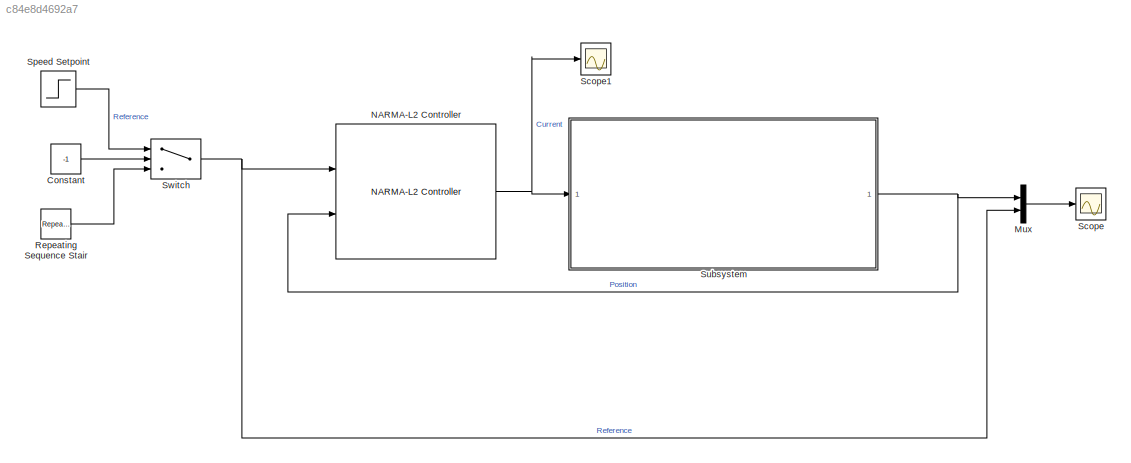
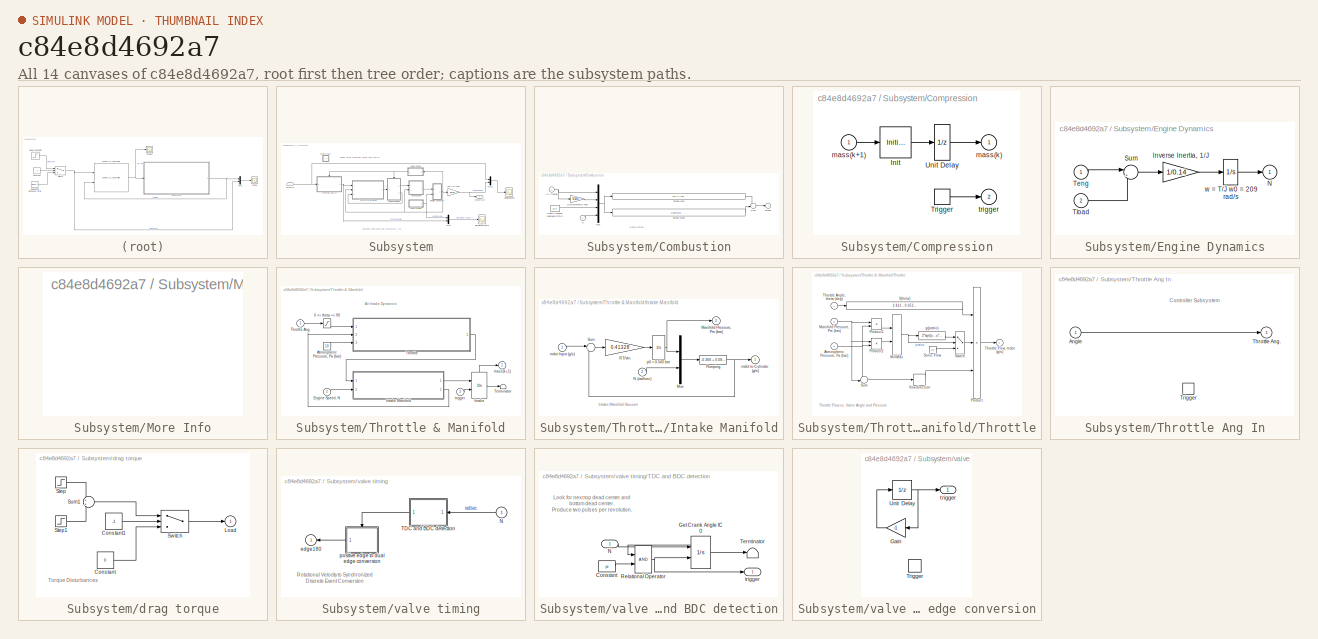
[diagram: thumbnail index - all 14 canvases of the model, root first then tree order]
MODEL slx_c84e8d4692a7
KIND model
CONFIG AbsTol = auto
CONFIG EnableMultiTasking = off
CONFIG FixedStep = 0.001
CONFIG MaxStep = auto
CONFIG MinStep = auto
CONFIG RelTol = 1e-3
CONFIG SampleTimeConstraint = Unconstrained
CONFIG Solver = FixedStepAuto
CONFIG SolverName = FixedStepAuto
CONFIG StartTime = 0.0
CONFIG StopTime = 30
BLOCK [Constant] Constant
  Value = -1
BLOCK [Mux] Mux
  DisplayOption = bar
  Inputs = 2
  Ports = [2, 1]
BLOCK [Reference] NARMA-L2 Controller  REF=neural/Control Systems/NARMA-L2 Controller
  Ports = [2, 1]
  SourceBlock = neural/Control Systems/NARMA-L2 Controller
  SourceProductBaseCode = NN
  SourceProductName = Deep Learning Toolbox
  SourceType = NARMA-L2 Controller
BLOCK [Reference] Repeating Sequence Stair  REF=simulink/Sources/Repeating
Sequence
Stair
  Ports = [0, 1]
  SourceBlock = simulink/Sources/Repeating\nSequence\nStair
  SourceProductBaseCode = SL
  SourceProductName = Simulink
  SourceType = Repeating Sequence Stair
BLOCK [Scope] Scope
  Floating = off
  NumInputPorts = 1
  Ports = [1]
  ScopeSpecificationString = Simulink.scopes.TimeScopeBlockCfg('CurrentConfiguration', extmgr.ConfigurationSet(extmgr.Configuration('Core','General UI',true),extmgr.Configuration('Core','Source UI',true),extmgr.Configuration('Sources','WiredSimulink',true),extmgr.Configuration('Visuals','Time Domain',true,'SerializedDisplays',{struct('MinYLimReal','283.59903','MaxYLimReal','5842.31636','YLabelReal','','MinYLimMag','283.59903'...<+1412ch>
BLOCK [Scope] Scope1
  Floating = off
  NumInputPorts = 1
  Ports = [1]
  ScopeSpecificationString = Simulink.scopes.TimeScopeBlockCfg('CurrentConfiguration', extmgr.ConfigurationSet(extmgr.Configuration('Core','General UI',true),extmgr.Configuration('Core','Source UI',true),extmgr.Configuration('Sources','WiredSimulink',true,'DataLoggingVariableName','ScopeData1'),extmgr.Configuration('Visuals','Time Domain',true,'SerializedDisplays',{struct('MinYLimReal','-3.875','MaxYLimReal','44.875','YLabelR...<+1429ch>
BLOCK [Step] Speed Setpoint
  After = 3000
  Before = 2000
  SampleTime = 0
  Time = 5
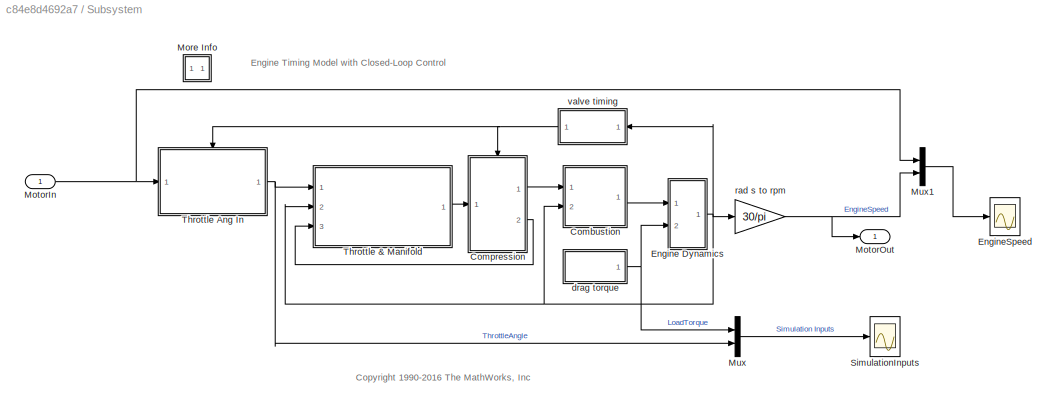
BLOCK [SubSystem] Subsystem
  Ports = [1, 1]
  RequestExecContextInheritance = off
BLOCK [SubSystem] Subsystem/Combustion
  Ports = [2, 1]
  RequestExecContextInheritance = off
BLOCK [Inport] Subsystem/Combustion/Air Charge
  IconDisplay = Port number
BLOCK [Mux] Subsystem/Combustion/Mux
  DisplayOption = bar
  Ports = [4, 1]
BLOCK [Inport] Subsystem/Combustion/N
  IconDisplay = Port number
  Port = 2
BLOCK [Constant] Subsystem/Combustion/Spark Advance (degrees BTDC)
  Value = 15.0
BLOCK [Gain] Subsystem/Combustion/Stoichiometric Fuel
  Gain = 1/14.6
BLOCK [Sum] Subsystem/Combustion/Sum
  IconShape = round
  Ports = [2, 1]
BLOCK [Outport] Subsystem/Combustion/Torque
  IconDisplay = Port number
  InitialOutput = 0
BLOCK [Fcn] Subsystem/Combustion/Torque Gen
  Expr = -181.3 + 379.36*u[1] + 21.91*u[1]/u[2] - (0.85*u[1]*u[1])/(u[2]*u[2]) + 0.26*u[3] - 0.0028*u[3]*u[3]
BLOCK [Fcn] Subsystem/Combustion/Torque Gen2
  Expr = 0.027*u[4] - 0.000107*u[4]*u[4] + 0.00048*u[4]*u[3] + 2.55*u[3]*u[1] - 0.05*u[3]*u[3]*u[1]
BLOCK [SubSystem] Subsystem/Compression
  Ports = [1, 2, 0, 1]
  RequestExecContextInheritance = off
  TreatAsAtomicUnit = on
BLOCK [InitialCondition] Subsystem/Compression/Init
  Value = 0.152
BLOCK [TriggerPort] Subsystem/Compression/Trigger
  Ports = [0, 1]
  ShowOutputPort = on
  TriggerType = either
  VariantControl = Variant
BLOCK [UnitDelay] Subsystem/Compression/Unit Delay
  HasFrameUpgradeWarning = on
  InitialCondition = 0.152
  SampleTime = -1
BLOCK [Outport] Subsystem/Compression/mass(k)
  IconDisplay = Port number
  InitialOutput = 0.152
BLOCK [Inport] Subsystem/Compression/mass(k+1)
  IconDisplay = Port number
BLOCK [Outport] Subsystem/Compression/trigger
  IconDisplay = Port number
  InitialOutput = -1
  Port = 2
BLOCK [SubSystem] Subsystem/Engine Dynamics
  Ports = [2, 1]
  RequestExecContextInheritance = off
BLOCK [Gain] Subsystem/Engine Dynamics/Inverse Inertia, 1//J
  Gain = 1/0.14
BLOCK [Outport] Subsystem/Engine Dynamics/N
  IconDisplay = Port number
  InitialOutput = 0
BLOCK [Sum] Subsystem/Engine Dynamics/Sum
  IconShape = round
  Inputs = |+-
  Ports = [2, 1]
BLOCK [Inport] Subsystem/Engine Dynamics/Teng
  IconDisplay = Port number
BLOCK [Inport] Subsystem/Engine Dynamics/Tload
  IconDisplay = Port number
  Port = 2
BLOCK [Integrator] Subsystem/Engine Dynamics/w = T//J w0 = 209 rad//s
  InitialCondition = 209.48
  Ports = [1, 1]
BLOCK [Scope] Subsystem/EngineSpeed
  Floating = off
  NumInputPorts = 1
  Ports = [1]
  ScopeSpecificationString = Simulink.scopes.TimeScopeBlockCfg('CurrentConfiguration', extmgr.ConfigurationSet(extmgr.Configuration('Core','General UI',true),extmgr.Configuration('Core','Source UI',true),extmgr.Configuration('Sources','WiredSimulink',true,'DataLoggingVariableName','ScopeData1','DataLoggingSaveFormat','Structure','DataLoggingDecimation','1'),extmgr.Configuration('Visuals','Time Domain',true,'TimeAxisLabels','A...<+1709ch>
BLOCK [SubSystem] Subsystem/More Info
  OpenFcn = showdemo(bdroot(gcb))
  Ports = []
  RequestExecContextInheritance = off
BLOCK [Inport] Subsystem/MotorIn
  IconDisplay = Port number
BLOCK [Outport] Subsystem/MotorOut 
  IconDisplay = Port number
BLOCK [Mux] Subsystem/Mux
  DisplayOption = bar
  Inputs = 2
  Ports = [2, 1]
BLOCK [Mux] Subsystem/Mux1
  DisplayOption = bar
  Inputs = 2
  Ports = [2, 1]
BLOCK [Scope] Subsystem/SimulationInputs
  Floating = off
  NumInputPorts = 1
  Ports = [1]
  ScopeSpecificationString = Simulink.scopes.TimeScopeBlockCfg('CurrentConfiguration', extmgr.ConfigurationSet(extmgr.Configuration('Core','General UI',true),extmgr.Configuration('Core','Source UI',true),extmgr.Configuration('Sources','WiredSimulink',true,'DataLoggingVariableName','ScopeData2','DataLoggingSaveFormat','Structure','DataLoggingDecimation','1'),extmgr.Configuration('Visuals','Time Domain',true,'TimeAxisLabels','A...<+1732ch>
BLOCK [SubSystem] Subsystem/Throttle & Manifold
  Ports = [3, 1]
  RequestExecContextInheritance = off
BLOCK [Saturate] Subsystem/Throttle & Manifold/0 <= theta <= 90
  InputPortMap = u0
  LowerLimit = 0
  Ports = [1, 1]
  UpperLimit = 90
BLOCK [Constant] Subsystem/Throttle & Manifold/Atmospheric Pressure, Pa (bar)
  Value = 1.0
BLOCK [Inport] Subsystem/Throttle & Manifold/Engine Speed, N
  IconDisplay = Port number
  Port = 2
BLOCK [Integrator] Subsystem/Throttle & Manifold/Intake
  ExternalReset = either
  Ports = [2, 1, 0, 0, 1]
  ShowStatePort = on
BLOCK [SubSystem] Subsystem/Throttle & Manifold/Intake Manifold
  Ports = [2, 2]
  RequestExecContextInheritance = off
BLOCK [Outport] Subsystem/Throttle & Manifold/Intake Manifold/Manifold Pressure, Pm (bar)
  IconDisplay = Port number
  InitialOutput = 0
  Port = 2
BLOCK [Mux] Subsystem/Throttle & Manifold/Intake Manifold/Mux
  DisplayOption = bar
  Inputs = 2
  Ports = [2, 1]
BLOCK [Inport] Subsystem/Throttle & Manifold/Intake Manifold/N (rad//sec)
  IconDisplay = Port number
  Port = 2
BLOCK [Fcn] Subsystem/Throttle & Manifold/Intake Manifold/Pumping
  Expr = -0.366 + 0.08979*u[1]*u[2] - 0.0337*u[2]*u[1]*u[1] + 0.0001*u[1]*u[2]*u[2]
BLOCK [Gain] Subsystem/Throttle & Manifold/Intake Manifold/RT//Vm
  Gain = 0.41328
BLOCK [Sum] Subsystem/Throttle & Manifold/Intake Manifold/Sum
  IconShape = round
  Inputs = |+-
  Ports = [2, 1]
BLOCK [Inport] Subsystem/Throttle & Manifold/Intake Manifold/mdot Input (g//s)
  IconDisplay = Port number
BLOCK [Outport] Subsystem/Throttle & Manifold/Intake Manifold/mdot to Cylinder (g//s)
  IconDisplay = Port number
  InitialOutput = 0
BLOCK [Integrator] Subsystem/Throttle & Manifold/Intake Manifold/p0 = 0.543 bar
  InitialCondition = .543
  Ports = [1, 1]
BLOCK [Terminator] Subsystem/Throttle & Manifold/Terminator
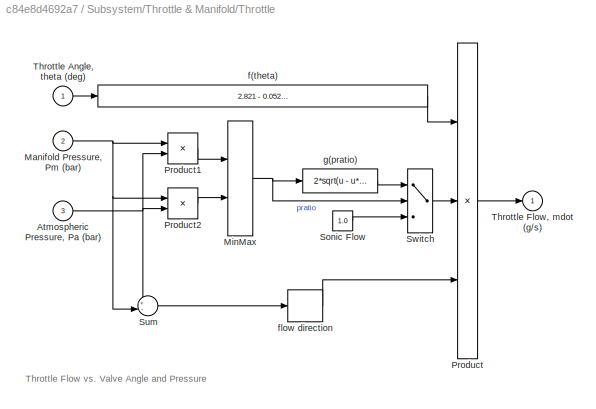
BLOCK [SubSystem] Subsystem/Throttle & Manifold/Throttle
  Ports = [3, 1]
  RequestExecContextInheritance = off
BLOCK [Inport] Subsystem/Throttle & Manifold/Throttle Ang.
  IconDisplay = Port number
BLOCK [Inport] Subsystem/Throttle & Manifold/Throttle/Atmospheric Pressure, Pa (bar) 
  IconDisplay = Port number
  Port = 3
BLOCK [Inport] Subsystem/Throttle & Manifold/Throttle/Manifold Pressure, Pm (bar)
  IconDisplay = Port number
  Port = 2
BLOCK [MinMax] Subsystem/Throttle & Manifold/Throttle/MinMax
  Inputs = 2
  Ports = [2, 1]
BLOCK [Product] Subsystem/Throttle & Manifold/Throttle/Product
  Inputs = 3
  Ports = [3, 1]
BLOCK [Product] Subsystem/Throttle & Manifold/Throttle/Product1
  Inputs = */
  Ports = [2, 1]
BLOCK [Product] Subsystem/Throttle & Manifold/Throttle/Product2
  Inputs = /*
  Ports = [2, 1]
BLOCK [Constant] Subsystem/Throttle & Manifold/Throttle/Sonic Flow 
  Value = 1.0
BLOCK [Sum] Subsystem/Throttle & Manifold/Throttle/Sum
  IconShape = round
  Inputs = +-|
  Ports = [2, 1]
BLOCK [Switch] Subsystem/Throttle & Manifold/Throttle/Switch
  Threshold = 0.5
BLOCK [Inport] Subsystem/Throttle & Manifold/Throttle/Throttle Angle, theta (deg)
  IconDisplay = Port number
BLOCK [Outport] Subsystem/Throttle & Manifold/Throttle/Throttle Flow, mdot (g//s)
  IconDisplay = Port number
  InitialOutput = 0
BLOCK [Fcn] Subsystem/Throttle & Manifold/Throttle/f(theta)
  Expr = 2.821 - 0.05231*u + 0.10299*u*u - 0.00063*u*u*u
BLOCK [Signum] Subsystem/Throttle & Manifold/Throttle/flow direction
BLOCK [Fcn] Subsystem/Throttle & Manifold/Throttle/g(pratio)
  Expr = 2*sqrt(u - u*u)
BLOCK [Outport] Subsystem/Throttle & Manifold/mass(k+1)
  IconDisplay = Port number
  InitialOutput = 0
BLOCK [Inport] Subsystem/Throttle & Manifold/trigger
  IconDisplay = Port number
  Port = 3
BLOCK [SubSystem] Subsystem/Throttle Ang In
  Ports = [1, 1, 0, 1]
  RequestExecContextInheritance = off
  TreatAsAtomicUnit = on
BLOCK [Inport] Subsystem/Throttle Ang In/Angle
  IconDisplay = Port number
BLOCK [Outport] Subsystem/Throttle Ang In/Throttle Ang.
  IconDisplay = Port number
  InitialOutput = 8.973
BLOCK [TriggerPort] Subsystem/Throttle Ang In/Trigger
  Ports = []
  TriggerType = either
  VariantControl = Variant
BLOCK [SubSystem] Subsystem/drag torque
  Ports = [0, 1]
  RequestExecContextInheritance = off
BLOCK [Constant] Subsystem/drag torque/Constant
  Value = 0
BLOCK [Constant] Subsystem/drag torque/Constant1
  Value = -1
BLOCK [Outport] Subsystem/drag torque/Load
  IconDisplay = Port number
  InitialOutput = 0
BLOCK [Step] Subsystem/drag torque/Step
  After = 20
  Before = 25
  SampleTime = 0
  Time = 2
BLOCK [Step] Subsystem/drag torque/Step1
  After = 5
  SampleTime = 0
  Time = 8
BLOCK [Sum] Subsystem/drag torque/Sum1
  IconShape = round
  Ports = [2, 1]
BLOCK [Switch] Subsystem/drag torque/Switch
  Criteria = u2 > Threshold
  InputSameDT = off
  SaturateOnIntegerOverflow = off
BLOCK [Gain] Subsystem/rad s to rpm
  Gain = 30/pi
BLOCK [SubSystem] Subsystem/valve timing
  Ports = [1, 1]
  RequestExecContextInheritance = off
BLOCK [Inport] Subsystem/valve timing/N
  IconDisplay = Port number
BLOCK [SubSystem] Subsystem/valve timing/TDC and BDC detection
  Ports = [1, 1]
  RequestExecContextInheritance = off
BLOCK [Constant] Subsystem/valve timing/TDC and BDC detection/Constant
  Value = pi
BLOCK [Integrator] Subsystem/valve timing/TDC and BDC detection/Get Crank Angle IC 0
  ExternalReset = rising
  Ports = [2, 1, 0, 0, 1]
  ShowStatePort = on
BLOCK [Inport] Subsystem/valve timing/TDC and BDC detection/N
  IconDisplay = Port number
BLOCK [RelationalOperator] Subsystem/valve timing/TDC and BDC detection/Relational Operator
  OutDataTypeStr = boolean
  Ports = [2, 1]
BLOCK [Terminator] Subsystem/valve timing/TDC and BDC detection/Terminator
BLOCK [Outport] Subsystem/valve timing/TDC and BDC detection/trigger
  IconDisplay = Port number
  InitialOutput = 0
BLOCK [Outport] Subsystem/valve timing/edge180
  IconDisplay = Port number
  InitialOutput = -1
BLOCK [SubSystem] Subsystem/valve timing/positive edge to dual edge conversion
  Ports = [0, 1, 0, 1]
  RequestExecContextInheritance = off
  TreatAsAtomicUnit = on
BLOCK [Gain] Subsystem/valve timing/positive edge to dual edge conversion/Gain
  Gain = -1
BLOCK [TriggerPort] Subsystem/valve timing/positive edge to dual edge conversion/Trigger
  Ports = []
  VariantControl = Variant
BLOCK [UnitDelay] Subsystem/valve timing/positive edge to dual edge conversion/Unit Delay
  HasFrameUpgradeWarning = on
  InitialCondition = 1
  SampleTime = -1
BLOCK [Outport] Subsystem/valve timing/positive edge to dual edge conversion/trigger
  IconDisplay = Port number
  InitialOutput = -1
BLOCK [Switch] Switch
  Criteria = u2 > Threshold
  InputSameDT = off
  SaturateOnIntegerOverflow = off
ANNOTATION Subsystem: <copyright redacted>
ANNOTATION Subsystem: Engine Timing Model with Closed-Loop Control
ANNOTATION Subsystem/Combustion: Engine Torque
ANNOTATION Subsystem/Throttle & Manifold: Air Intake Dynamics
ANNOTATION Subsystem/Throttle & Manifold/Intake Manifold: Intake Manifold Vacuum
ANNOTATION Subsystem/Throttle & Manifold/Throttle: Throttle Flow vs. Valve Angle and Pressure
ANNOTATION Subsystem/Throttle Ang In: Controller Subsystem
ANNOTATION Subsystem/drag torque: Torque Disturbances
ANNOTATION Subsystem/valve timing: Rotational Velocity to Synchronized Discrete Event Conversion
ANNOTATION Subsystem/valve timing/TDC and BDC detection: Look for next top dead center.and bottom dead center. Produce two pulses per revolution.
LINE Constant:1 -> Switch:2
LINE Mux:1 -> Scope:1
NET NARMA-L2 Controller:1 -> Scope1:1, Subsystem:1
LINE Repeating Sequence Stair:1 -> Switch:3
LINE Speed Setpoint:1 -> Switch:1
NET Subsystem/Combustion/Air Charge:1 -> Subsystem/Combustion/Mux:1, Subsystem/Combustion/Stoichiometric Fuel:1
NET Subsystem/Combustion/Mux:1 -> Subsystem/Combustion/Torque Gen2:1, Subsystem/Combustion/Torque Gen:1
LINE Subsystem/Combustion/N:1 -> Subsystem/Combustion/Mux:4
LINE Subsystem/Combustion/Spark Advance (degrees BTDC):1 -> Subsystem/Combustion/Mux:3
LINE Subsystem/Combustion/Stoichiometric Fuel:1 -> Subsystem/Combustion/Mux:2
LINE Subsystem/Combustion/Sum:1 -> Subsystem/Combustion/Torque:1
LINE Subsystem/Combustion/Torque Gen2:1 -> Subsystem/Combustion/Sum:2
LINE Subsystem/Combustion/Torque Gen:1 -> Subsystem/Combustion/Sum:1
LINE Subsystem/Combustion:1 -> Subsystem/Engine Dynamics:1
LINE Subsystem/Compression/Init:1 -> Subsystem/Compression/Unit Delay:1
LINE Subsystem/Compression/Trigger:1 -> Subsystem/Compression/trigger:1
LINE Subsystem/Compression/Unit Delay:1 -> Subsystem/Compression/mass(k):1
LINE Subsystem/Compression/mass(k+1):1 -> Subsystem/Compression/Init:1
LINE Subsystem/Compression:1 -> Subsystem/Combustion:1
LINE Subsystem/Compression:2 -> Subsystem/Throttle & Manifold:3
LINE Subsystem/Engine Dynamics/Inverse Inertia, 1//J:1 -> Subsystem/Engine Dynamics/w = T//J w0 = 209 rad//s:1
LINE Subsystem/Engine Dynamics/Sum:1 -> Subsystem/Engine Dynamics/Inverse Inertia, 1//J:1
LINE Subsystem/Engine Dynamics/Teng:1 -> Subsystem/Engine Dynamics/Sum:1
LINE Subsystem/Engine Dynamics/Tload:1 -> Subsystem/Engine Dynamics/Sum:2
LINE Subsystem/Engine Dynamics/w = T//J w0 = 209 rad//s:1 -> Subsystem/Engine Dynamics/N:1
NET Subsystem/Engine Dynamics:1 -> Subsystem/Combustion:2, Subsystem/Throttle & Manifold:2, Subsystem/rad s to rpm:1, Subsystem/valve timing:1
NET Subsystem/MotorIn:1 -> Subsystem/Mux1:1, Subsystem/Throttle Ang In:1
LINE Subsystem/Mux1:1 -> Subsystem/EngineSpeed:1
LINE Subsystem/Mux:1 -> Subsystem/SimulationInputs:1
LINE Subsystem/Throttle & Manifold/0 <= theta <= 90:1 -> Subsystem/Throttle & Manifold/Throttle:1
LINE Subsystem/Throttle & Manifold/Atmospheric Pressure, Pa (bar):1 -> Subsystem/Throttle & Manifold/Throttle:3
LINE Subsystem/Throttle & Manifold/Engine Speed, N:1 -> Subsystem/Throttle & Manifold/Intake Manifold:2
LINE Subsystem/Throttle & Manifold/Intake Manifold/Mux:1 -> Subsystem/Throttle & Manifold/Intake Manifold/Pumping:1
LINE Subsystem/Throttle & Manifold/Intake Manifold/N (rad//sec):1 -> Subsystem/Throttle & Manifold/Intake Manifold/Mux:2
NET Subsystem/Throttle & Manifold/Intake Manifold/Pumping:1 -> Subsystem/Throttle & Manifold/Intake Manifold/Sum:2, Subsystem/Throttle & Manifold/Intake Manifold/mdot to Cylinder (g//s):1
LINE Subsystem/Throttle & Manifold/Intake Manifold/RT//Vm:1 -> Subsystem/Throttle & Manifold/Intake Manifold/p0 = 0.543 bar:1
LINE Subsystem/Throttle & Manifold/Intake Manifold/Sum:1 -> Subsystem/Throttle & Manifold/Intake Manifold/RT//Vm:1
LINE Subsystem/Throttle & Manifold/Intake Manifold/mdot Input (g//s):1 -> Subsystem/Throttle & Manifold/Intake Manifold/Sum:1
NET Subsystem/Throttle & Manifold/Intake Manifold/p0 = 0.543 bar:1 -> Subsystem/Throttle & Manifold/Intake Manifold/Manifold Pressure, Pm (bar):1, Subsystem/Throttle & Manifold/Intake Manifold/Mux:1
LINE Subsystem/Throttle & Manifold/Intake Manifold:1 -> Subsystem/Throttle & Manifold/Intake:1
LINE Subsystem/Throttle & Manifold/Intake Manifold:2 -> Subsystem/Throttle & Manifold/Throttle:2
LINE Subsystem/Throttle & Manifold/Intake:1 -> Subsystem/Throttle & Manifold/Terminator:1
LINE Subsystem/Throttle & Manifold/Intake:state -> Subsystem/Throttle & Manifold/mass(k+1):1
LINE Subsystem/Throttle & Manifold/Throttle Ang.:1 -> Subsystem/Throttle & Manifold/0 <= theta <= 90:1
NET Subsystem/Throttle & Manifold/Throttle/Atmospheric Pressure, Pa (bar) :1 -> Subsystem/Throttle & Manifold/Throttle/Product1:2, Subsystem/Throttle & Manifold/Throttle/Product2:2, Subsystem/Throttle & Manifold/Throttle/Sum:1
NET Subsystem/Throttle & Manifold/Throttle/Manifold Pressure, Pm (bar):1 -> Subsystem/Throttle & Manifold/Throttle/Product1:1, Subsystem/Throttle & Manifold/Throttle/Product2:1, Subsystem/Throttle & Manifold/Throttle/Sum:2
NET Subsystem/Throttle & Manifold/Throttle/MinMax:1 -> Subsystem/Throttle & Manifold/Throttle/Switch:2, Subsystem/Throttle & Manifold/Throttle/g(pratio):1
LINE Subsystem/Throttle & Manifold/Throttle/Product1:1 -> Subsystem/Throttle & Manifold/Throttle/MinMax:1
LINE Subsystem/Throttle & Manifold/Throttle/Product2:1 -> Subsystem/Throttle & Manifold/Throttle/MinMax:2
LINE Subsystem/Throttle & Manifold/Throttle/Product:1 -> Subsystem/Throttle & Manifold/Throttle/Throttle Flow, mdot (g//s):1
LINE Subsystem/Throttle & Manifold/Throttle/Sonic Flow :1 -> Subsystem/Throttle & Manifold/Throttle/Switch:3
LINE Subsystem/Throttle & Manifold/Throttle/Sum:1 -> Subsystem/Throttle & Manifold/Throttle/flow direction:1
LINE Subsystem/Throttle & Manifold/Throttle/Switch:1 -> Subsystem/Throttle & Manifold/Throttle/Product:2
LINE Subsystem/Throttle & Manifold/Throttle/Throttle Angle, theta (deg):1 -> Subsystem/Throttle & Manifold/Throttle/f(theta):1
LINE Subsystem/Throttle & Manifold/Throttle/f(theta):1 -> Subsystem/Throttle & Manifold/Throttle/Product:1
LINE Subsystem/Throttle & Manifold/Throttle/flow direction:1 -> Subsystem/Throttle & Manifold/Throttle/Product:3
LINE Subsystem/Throttle & Manifold/Throttle/g(pratio):1 -> Subsystem/Throttle & Manifold/Throttle/Switch:1
LINE Subsystem/Throttle & Manifold/Throttle:1 -> Subsystem/Throttle & Manifold/Intake Manifold:1
LINE Subsystem/Throttle & Manifold/trigger:1 -> Subsystem/Throttle & Manifold/Intake:2
LINE Subsystem/Throttle & Manifold:1 -> Subsystem/Compression:1
LINE Subsystem/Throttle Ang In/Angle:1 -> Subsystem/Throttle Ang In/Throttle Ang.:1
NET Subsystem/Throttle Ang In:1 -> Subsystem/Mux:2, Subsystem/Throttle & Manifold:1
LINE Subsystem/drag torque/Constant1:1 -> Subsystem/drag torque/Switch:2
LINE Subsystem/drag torque/Constant:1 -> Subsystem/drag torque/Switch:3
LINE Subsystem/drag torque/Step1:1 -> Subsystem/drag torque/Sum1:2
LINE Subsystem/drag torque/Step:1 -> Subsystem/drag torque/Sum1:1
LINE Subsystem/drag torque/Sum1:1 -> Subsystem/drag torque/Switch:1
LINE Subsystem/drag torque/Switch:1 -> Subsystem/drag torque/Load:1
NET Subsystem/drag torque:1 -> Subsystem/Engine Dynamics:2, Subsystem/Mux:1
NET Subsystem/rad s to rpm:1 -> Subsystem/MotorOut :1, Subsystem/Mux1:2
LINE Subsystem/valve timing/N:1 -> Subsystem/valve timing/TDC and BDC detection:1
LINE Subsystem/valve timing/TDC and BDC detection/Constant:1 -> Subsystem/valve timing/TDC and BDC detection/Relational Operator:2
LINE Subsystem/valve timing/TDC and BDC detection/Get Crank Angle IC 0:1 -> Subsystem/valve timing/TDC and BDC detection/Terminator:1
LINE Subsystem/valve timing/TDC and BDC detection/Get Crank Angle IC 0:state -> Subsystem/valve timing/TDC and BDC detection/Relational Operator:1
LINE Subsystem/valve timing/TDC and BDC detection/N:1 -> Subsystem/valve timing/TDC and BDC detection/Get Crank Angle IC 0:1
NET Subsystem/valve timing/TDC and BDC detection/Relational Operator:1 -> Subsystem/valve timing/TDC and BDC detection/Get Crank Angle IC 0:2, Subsystem/valve timing/TDC and BDC detection/trigger:1
LINE Subsystem/valve timing/TDC and BDC detection:1 -> Subsystem/valve timing/positive edge to dual edge conversion:trigger
LINE Subsystem/valve timing/positive edge to dual edge conversion/Gain:1 -> Subsystem/valve timing/positive edge to dual edge conversion/Unit Delay:1
NET Subsystem/valve timing/positive edge to dual edge conversion/Unit Delay:1 -> Subsystem/valve timing/positive edge to dual edge conversion/Gain:1, Subsystem/valve timing/positive edge to dual edge conversion/trigger:1
LINE Subsystem/valve timing/positive edge to dual edge conversion:1 -> Subsystem/valve timing/edge180:1
NET Subsystem/valve timing:1 -> Subsystem/Compression:trigger, Subsystem/Throttle Ang In:trigger
NET Subsystem:1 -> Mux:1, NARMA-L2 Controller:2
NET Switch:1 -> Mux:2, NARMA-L2 Controller:1
note: NET lines group one-source signal fan-out (src -> all destinations, sorted); 1:1 wires keep LINE
